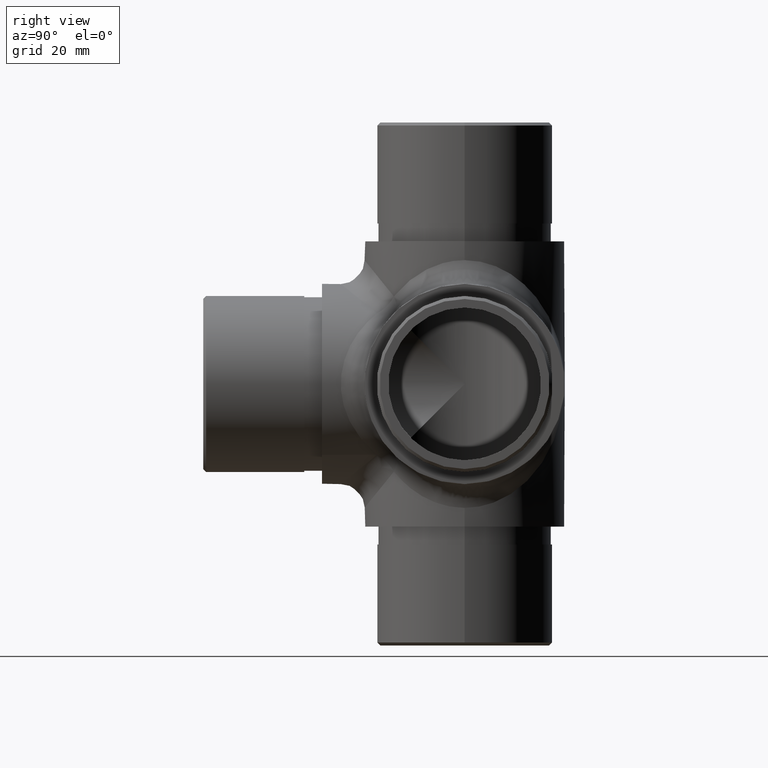
[diagram: clean part render]
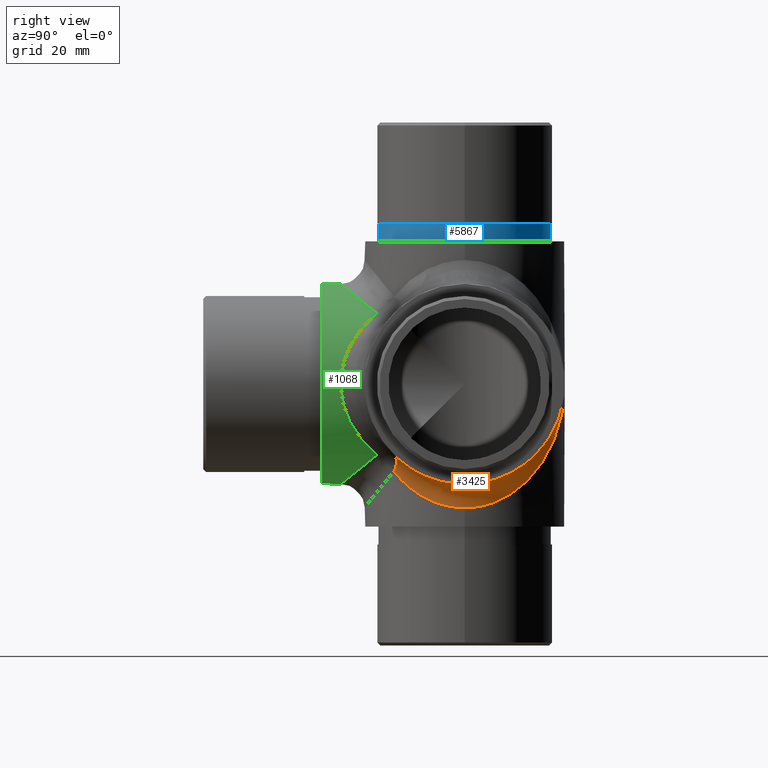
[diagram: same view with three faces highlighted in distinct colors, each labeled with its STEP entity id]
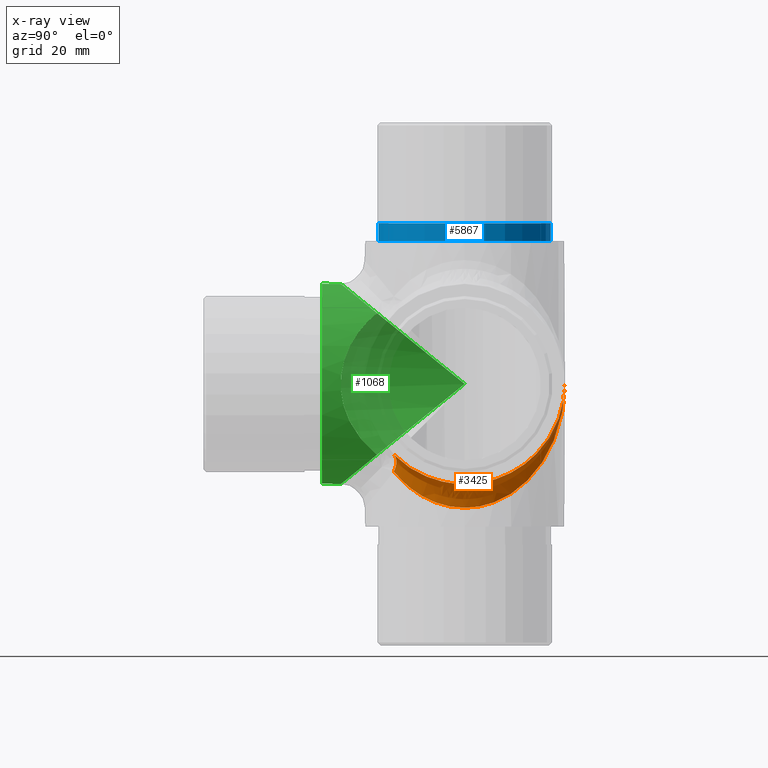
[diagram: x-ray of the same camera — body ghosted, the three highlighted faces saturated]
A machine part, right view with three faces highlighted in distinct colors.
The next image is the same camera in x-ray (body ghosted, the three faces saturated) — at least one of them is partly hidden behind the body in this view.
Their STEP definitions:

[orange] entity #3425 — the highlighted face is a freeform B-spline surface patch.
#187 = ORIENTED_EDGE ( 'NONE', *, *, #4513, .F. ) ;
#270 = EDGE_CURVE ( 'NONE', #10677, #4489, #3300, .T. ) ;
#445 = CARTESIAN_POINT ( 'NONE',  ( 13.43653663587224400, 33.70114904803303100, -13.43653663588843700 ) ) ;
#507 = CARTESIAN_POINT ( 'NONE',  ( 17.63641363597994200, 60.84999999999568800, -21.82309936558942500 ) ) ;
#538 = CARTESIAN_POINT ( 'NONE',  ( 16.36486839152527400, 39.90149855926519300, -20.24970361800024700 ) ) ;
#581 = CARTESIAN_POINT ( 'NONE',  ( 15.88389617735175300, 49.68405434164027000, -19.65455402361004600 ) ) ;
#628 = CARTESIAN_POINT ( 'NONE',  ( 16.68628196688430200, 46.55001467595894800, -16.68628196690896500 ) ) ;
#680 = CARTESIAN_POINT ( 'NONE',  ( 16.54600097572908300, 47.29188141383608700, -20.47383503525089000 ) ) ;
#726 = CARTESIAN_POINT ( 'NONE',  ( 18.87122248208976300, 51.21237732905378700, -15.25084406828093000 ) ) ;
#770 = CARTESIAN_POINT ( 'NONE',  ( 13.43593229435473200, 54.29547838493832800, -13.43593229436983100 ) ) ;
#1440 = CARTESIAN_POINT ( 'NONE',  ( 15.46689860024854500, 32.67012935961199100, -12.49962788559734200 ) ) ;
#1613 = CARTESIAN_POINT ( 'NONE',  ( 19.97646822294041900, 48.89655064889348800, -16.14405225692855300 ) ) ;
#1665 = CARTESIAN_POINT ( 'NONE',  ( 16.76309417136247500, 45.90278812780322000, -16.76309417138600800 ) ) ;
#1708 = CARTESIAN_POINT ( 'NONE',  ( 15.25084406827879800, 51.21237732905417100, -18.87122248211157700 ) ) ;
#1758 = CARTESIAN_POINT ( 'NONE',  ( 17.35747176425961400, 53.37207782090800400, -14.02750116202313900 ) ) ;
#2401 = CARTESIAN_POINT ( 'NONE',  ( 19.28639643330344100, 37.54463374526562100, -15.58636834060469000 ) ) ;
#2539 = CARTESIAN_POINT ( 'NONE',  ( 11.91474926299239300, 32.08525073700142400, -14.74317638773785100 ) ) ;
#2634 = CARTESIAN_POINT ( 'NONE',  ( 16.81787279699630500, 42.73721788667288700, -16.81787279701798700 ) ) ;
#2644 = CARTESIAN_POINT ( 'NONE',  ( 14.74317638772781600, 32.08525073700748500, -11.91474926300278100 ) ) ;
#2671 = CARTESIAN_POINT ( 'NONE',  ( 12.50050521766040700, 55.32890113095297100, -15.46798420108251500 ) ) ;
#2714 = CARTESIAN_POINT ( 'NONE',  ( 14.82249837655076900, 52.17667051820870200, -14.82249837656859600 ) ) ;
#2766 = CARTESIAN_POINT ( 'NONE',  ( 15.46798420106070400, 55.32890113095155000, -12.50050521766581800 ) ) ;
#2817 = CARTESIAN_POINT ( 'NONE',  ( 13.24366149213323500, 57.04048794398283200, -10.70291108599146000 ) ) ;
#3300 =( BOUNDED_CURVE ( )  B_SPLINE_CURVE ( 3, ( #6852, #507, #8838, #12872 ),
 .UNSPECIFIED., .F., .T. ) 
 B_SPLINE_CURVE_WITH_KNOTS ( ( 4, 4 ),
 ( 4.712388980384689700, 7.068583470577216600 ),
 .UNSPECIFIED. ) 
 CURVE ( )  GEOMETRIC_REPRESENTATION_ITEM ( )  RATIONAL_B_SPLINE_CURVE ( ( 1.000000000000000000, 0.5884556215766704200, 0.5884556215766704200, 1.000000000000000000 ) ) 
 REPRESENTATION_ITEM ( '' )  );
#3425 = ADVANCED_FACE ( 'NONE', ( #12616 ), #3899, .F. ) ;
#3457 = CARTESIAN_POINT ( 'NONE',  ( 16.06072260664960200, 38.70662632941130700, -16.06072260667241000 ) ) ;
#3587 = CARTESIAN_POINT ( 'NONE',  ( 15.19650414770706700, 36.54646719331954300, -15.19650414772241800 ) ) ;
#3624 = CARTESIAN_POINT ( 'NONE',  ( 17.35655857882954200, 34.62681769303890900, -14.02676316803583300 ) ) ;
#3670 = CARTESIAN_POINT ( 'NONE',  ( 16.14405225692716800, 48.89655064889479500, -19.97646822296223200 ) ) ;
#3711 = CARTESIAN_POINT ( 'NONE',  ( 7.216921912148167800, 59.35861035221129400, -7.216921912159794900 ) ) ;
#3765 = CARTESIAN_POINT ( 'NONE',  ( 16.85080803507136300, 44.62511639887508600, -16.85080803509133000 ) ) ;
#3805 = CARTESIAN_POINT ( 'NONE',  ( 11.92862569235653500, 55.92956498047277600, -14.76034692496667400 ) ) ;
#3845 = CARTESIAN_POINT ( 'NONE',  ( 14.87795299498906900, 51.95318465839487500, -18.40981127273095200 ) ) ;
#3899 =( BOUNDED_SURFACE ( )  B_SPLINE_SURFACE ( 3, 2, ( 
 ( #9769, #4657, #2539 ),
 ( #1440, #445, #5555 ),
 ( #7657, #8744, #11787 ),
 ( #3624, #9723, #12783 ),
 ( #11834, #3587, #10773 ),
 ( #9583, #5682, #4612 ),
 ( #2401, #3457, #10823 ),
 ( #11879, #5512, #12908 ),
 ( #11698, #6709, #538 ),
 ( #10644, #12739, #6533 ),
 ( #8782, #2634, #13041 ),
 ( #6882, #9810, #9896 ),
 ( #7945, #3765, #9992 ),
 ( #6843, #1665, #6934 ),
 ( #8964, #628, #680 ),
 ( #1613, #12062, #3670 ),
 ( #7893, #8825, #581 ),
 ( #726, #7793, #1708 ),
 ( #6801, #8923, #3845 ),
 ( #1758, #2714, #12111 ),
 ( #7985, #7838, #5821 ),
 ( #2766, #770, #2671 ),
 ( #8876, #9943, #3805 ),
 ( #2817, #11059, #10962 ),
 ( #10867, #4890, #5914 ),
 ( #4792, #13141, #5870 ),
 ( #6754, #3711, #4705 ),
 ( #11965, #12015, #11017 ),
 ( #4749, #12957, #4837 ),
 ( #9856, #10914, #13095 ) ),
 .UNSPECIFIED., .F., .F., .T. ) 
 B_SPLINE_SURFACE_WITH_KNOTS ( ( 4, 2, 2, 2, 2, 2, 2, 2, 2, 2, 2, 2, 2, 2, 4 ),
 ( 3, 3 ),
 ( 5.497787143782025200, 5.645049299419053300, 5.792311455056082400, 5.939573610693111400, 6.086835766330139600, 6.234097921967167700, 6.381360077604196800, 6.528622233241225800, 6.675884388878254000, 6.823146544515282100, 6.970408700152311200, 7.117670855789340200, 7.264933011426368400, 7.559457322700425600, 7.853981633974482800 ),
 ( 0.0000000000000000000, 1.000000000000000000 ),
 .UNSPECIFIED. ) 
 GEOMETRIC_REPRESENTATION_ITEM ( )  RATIONAL_B_SPLINE_SURFACE ( (
 ( 1.000000000000000000, 0.8660254037855842400, 1.000000000000000000),
 ( 1.000000000000000000, 0.8518581657900554700, 1.000000000000000000),
 ( 1.000000000000000000, 0.8373286426287264200, 1.000000000000000000),
 ( 1.000000000000000000, 0.8087926538602341300, 1.000000000000000000),
 ( 1.000000000000000000, 0.7947862272516439400, 1.000000000000000000),
 ( 1.000000000000000000, 0.7686809988168064000, 1.000000000000000000),
 ( 1.000000000000000000, 0.7565887938688089500, 1.000000000000000000),
 ( 1.000000000000000000, 0.7357213436855957200, 1.000000000000000000),
 ( 1.000000000000000000, 0.7269560325927317800, 1.000000000000000000),
 ( 1.000000000000000000, 0.7139188639543188100, 1.000000000000000000),
 ( 1.000000000000000000, 0.7096565420278095900, 1.000000000000000000),
 ( 1.000000000000000000, 0.7062584530685449600, 1.000000000000000000),
 ( 1.000000000000000000, 0.7071257296547213100, 1.000000000000000000),
 ( 1.000000000000000000, 0.7138650231679686300, 1.000000000000000000),
 ( 1.000000000000000000, 0.7197312459740081700, 1.000000000000000000),
 ( 1.000000000000000000, 0.7356308174528779500, 1.000000000000000000),
 ( 1.000000000000000000, 0.7456538433616076700, 1.000000000000000000),
 ( 1.000000000000000000, 0.7685763963388950700, 1.000000000000000000),
 ( 1.000000000000000000, 0.7814668926419364700, 1.000000000000000000),
 ( 1.000000000000000000, 0.8086913583454520300, 1.000000000000000000),
 ( 1.000000000000000000, 0.8230199978462705600, 1.000000000000000000),
 ( 1.000000000000000000, 0.8517664595841157900, 1.000000000000000000),
 ( 1.000000000000000000, 0.8661820557097174000, 1.000000000000000000),
 ( 1.000000000000000000, 0.8939364460783907300, 1.000000000000000000),
 ( 1.000000000000000000, 0.9072747350178003200, 1.000000000000000000),
 ( 1.000000000000000000, 0.9442614554964409200, 1.000000000000000000),
 ( 1.000000000000000000, 0.9647745980456363700, 1.000000000000000000),
 ( 1.000000000000000000, 0.9926394134260547700, 1.000000000000000000),
 ( 1.000000000000000000, 1.000049692711941100, 1.000000000000000000),
 ( 1.000000000000000000, 1.000000000000000000, 1.000000000000000000) ) ) 
 REPRESENTATION_ITEM ( '' )  SURFACE ( )  );
#4489 = VERTEX_POINT ( 'NONE', #9643 ) ;
#4513 = EDGE_CURVE ( 'NONE', #10254, #10677, #11500, .T. ) ;
#4612 = CARTESIAN_POINT ( 'NONE',  ( 15.25027612370903500, 36.78642185303365200, -18.87051971390496500 ) ) ;
#4657 = CARTESIAN_POINT ( 'NONE',  ( 12.85755830456466400, 33.02805977857320100, -12.85755830457864800 ) ) ;
#4705 = CARTESIAN_POINT ( 'NONE',  ( 6.474310463856060200, 59.64424271560802300, -8.011238763880202300 ) ) ;
#4749 = CARTESIAN_POINT ( 'NONE',  ( 2.047061189609068200, 60.84999999998451900, -1.654339618478752700 ) ) ;
#4760 = CARTESIAN_POINT ( 'NONE',  ( 30.17443793565071200, 44.55607841481520400, -24.38557694080259400 ) ) ;
#4792 = CARTESIAN_POINT ( 'NONE',  ( 9.881667655209600600, 58.92931218146535600, -7.985904076294065000 ) ) ;
#4837 = CARTESIAN_POINT ( 'NONE',  ( 1.654339618479534300, 60.84999999999568800, -2.047061189632046300 ) ) ;
#4890 = CARTESIAN_POINT ( 'NONE',  ( 10.99872592893003700, 56.85083583709571500, -10.99872592895275500 ) ) ;
#5512 = CARTESIAN_POINT ( 'NONE',  ( 16.44239679482694100, 40.10545594430441700, -16.44239679484225300 ) ) ;
#5555 = CARTESIAN_POINT ( 'NONE',  ( 12.49962788559850700, 32.67012935960723000, -15.46689860027508200 ) ) ;
#5682 = CARTESIAN_POINT ( 'NONE',  ( 15.81736895203990300, 37.99146490380090300, -15.81736895205918400 ) ) ;
#5690 = CARTESIAN_POINT ( 'NONE',  ( 14.74317638772781600, 32.08525073700748500, -11.91474926300278100 ) ) ;
#5788 = ORIENTED_EDGE ( 'NONE', *, *, #7166, .T. ) ;
#5821 = CARTESIAN_POINT ( 'NONE',  ( 13.54994706066385700, 54.05015254535320000, -16.76655170414466400 ) ) ;
#5870 = CARTESIAN_POINT ( 'NONE',  ( 7.985904076285681400, 58.92931218146024700, -9.881667655229103200 ) ) ;
#5914 = CARTESIAN_POINT ( 'NONE',  ( 10.04908560142765900, 57.55073836021018300, -12.43462521007428900 ) ) ;
#6122 = ORIENTED_EDGE ( 'NONE', *, *, #270, .F. ) ;
#6323 = AXIS2_PLACEMENT_3D ( 'NONE', #7528, #10738, #8699 ) ;
#6533 = CARTESIAN_POINT ( 'NONE',  ( 16.68759555806333200, 41.52395758878137900, -20.64904257481376200 ) ) ;
#6615 = CARTESIAN_POINT ( 'NONE',  ( 0.0000000000000000000, 60.84999999999568800, 0.0000000000000000000 ) ) ;
#6709 = CARTESIAN_POINT ( 'NONE',  ( 16.57654214454479600, 40.78180193427887400, -16.57654214456192300 ) ) ;
#6754 = CARTESIAN_POINT ( 'NONE',  ( 8.011238763858390400, 59.64424271559785500, -6.474310463853477400 ) ) ;
#6801 = CARTESIAN_POINT ( 'NONE',  ( 18.40981127270914200, 51.95318465839232400, -14.87795299498759300 ) ) ;
#6843 = CARTESIAN_POINT ( 'NONE',  ( 20.64928375427806600, 46.47472843443518500, -16.68779046810545500 ) ) ;
#6852 = CARTESIAN_POINT ( 'NONE',  ( 0.0000000000000000000, 60.84999999999568800, 0.0000000000000000000 ) ) ;
#6882 = CARTESIAN_POINT ( 'NONE',  ( 20.87510465171854800, 43.99933582288642200, -16.87028841159666800 ) ) ;
#6934 = CARTESIAN_POINT ( 'NONE',  ( 16.68779046810505700, 46.47472843443715400, -20.64928375430165600 ) ) ;
#7166 = EDGE_CURVE ( 'NONE', #10254, #4489, #8373, .T. ) ;
#7229 = EDGE_LOOP ( 'NONE', ( #5788, #6122, #187 ) ) ;
#7528 = CARTESIAN_POINT ( 'NONE',  ( 14.74317638771253200, 29.25682361225184300, -14.74317638773951300 ) ) ;
#7657 = CARTESIAN_POINT ( 'NONE',  ( 16.13719548386713100, 33.29811574555355900, -13.04133064285900900 ) ) ;
#7793 = CARTESIAN_POINT ( 'NONE',  ( 15.81431149140683900, 50.00791797635671500, -15.81431149142637500 ) ) ;
#7838 = CARTESIAN_POINT ( 'NONE',  ( 14.40577954045467400, 52.89720291917531400, -14.40577954047187600 ) ) ;
#7893 = CARTESIAN_POINT ( 'NONE',  ( 19.65455402358823300, 49.68405434163781800, -15.88389617735080300 ) ) ;
#7945 = CARTESIAN_POINT ( 'NONE',  ( 20.84991934790920700, 44.82844919465845400, -16.84993482074796100 ) ) ;
#7985 = CARTESIAN_POINT ( 'NONE',  ( 16.76655170412285000, 54.05015254535265300, -13.54994706066007700 ) ) ;
#8373 = CIRCLE ( 'NONE', #6323, 3.999999999999999100 ) ;
#8699 = DIRECTION ( 'NONE',  ( 0.7071067811830358300, 0.0000000000000000000, 0.7071067811900592100 ) ) ;
#8744 = CARTESIAN_POINT ( 'NONE',  ( 13.94191703265154600, 34.39799646659750500, -13.94191703266909600 ) ) ;
#8782 = CARTESIAN_POINT ( 'NONE',  ( 20.77466587199336000, 42.34708355226673100, -16.78911846251743600 ) ) ;
#8825 = CARTESIAN_POINT ( 'NONE',  ( 16.27147724458808800, 48.58768780416858800, -16.27147724460762700 ) ) ;
#8838 = CARTESIAN_POINT ( 'NONE',  ( 24.38557694080574100, 44.55607841481023000, -30.17443793565577400 ) ) ;
#8840 = CARTESIAN_POINT ( 'NONE',  ( 21.82309936558339200, 60.84999999999568100, -17.63641363597575000 ) ) ;
#8876 = CARTESIAN_POINT ( 'NONE',  ( 14.76034692494486000, 55.92956498046913100, -11.92862569235473700 ) ) ;
#8923 = CARTESIAN_POINT ( 'NONE',  ( 15.52952239489219900, 50.73057884407295100, -15.52952239491002700 ) ) ;
#8964 = CARTESIAN_POINT ( 'NONE',  ( 20.47383503522907600, 47.29188141383428200, -16.54600097572848200 ) ) ;
#9583 = CARTESIAN_POINT ( 'NONE',  ( 18.87051971388315200, 36.78642185303416300, -15.25027612370598400 ) ) ;
#9643 = CARTESIAN_POINT ( 'NONE',  ( 11.91474926299332000, 32.08525073699802700, -14.74317638773951300 ) ) ;
#9723 = CARTESIAN_POINT ( 'NONE',  ( 14.82445315691971800, 35.82083456138834500, -14.82445315693313100 ) ) ;
#9769 = CARTESIAN_POINT ( 'NONE',  ( 14.74317638771603900, 32.08525073700059200, -11.91474926299156500 ) ) ;
#9810 = CARTESIAN_POINT ( 'NONE',  ( 16.86082885428247400, 44.00289475777827900, -16.86082885430416000 ) ) ;
#9856 = CARTESIAN_POINT ( 'NONE',  ( -2.180914780865528100E-011, 60.84999999999568800, -1.031764928281696000E-015 ) ) ;
#9896 = CARTESIAN_POINT ( 'NONE',  ( 16.87028841159735700, 43.99933582288804200, -20.87510465174036200 ) ) ;
#9943 = CARTESIAN_POINT ( 'NONE',  ( 12.88733898681454600, 54.97414848844560000, -12.88733898682915900 ) ) ;
#9992 = CARTESIAN_POINT ( 'NONE',  ( 16.84993482074804300, 44.82844919465976100, -20.84991934792923400 ) ) ;
#10254 = VERTEX_POINT ( 'NONE', #5690 ) ;
#10644 = CARTESIAN_POINT ( 'NONE',  ( 20.64904257479014000, 41.52395758877692300, -16.68759555806099500 ) ) ;
#10677 = VERTEX_POINT ( 'NONE', #6615 ) ;
#10738 = DIRECTION ( 'NONE',  ( -0.5773502691934486700, -0.5773502691877143700, 0.5773502691877143700 ) ) ;
#10773 = CARTESIAN_POINT ( 'NONE',  ( 14.47047048482968300, 35.32750811592001100, -17.90559700941955200 ) ) ;
#10823 = CARTESIAN_POINT ( 'NONE',  ( 15.58636834060152600, 37.54463374526331900, -19.28639643332712300 ) ) ;
#10867 = CARTESIAN_POINT ( 'NONE',  ( 12.43462521005131900, 57.55073836020687100, -10.04908560142462000 ) ) ;
#10914 = CARTESIAN_POINT ( 'NONE',  ( -1.090405802186349900E-011, 60.84999999999568800, -1.154229608196406100E-015 ) ) ;
#10962 = CARTESIAN_POINT ( 'NONE',  ( 10.70291108598801200, 57.04048794398068600, -13.24366149215504900 ) ) ;
#11017 = CARTESIAN_POINT ( 'NONE',  ( 3.308283159619231900, 60.60464659855880100, -4.093632277631337900 ) ) ;
#11059 = CARTESIAN_POINT ( 'NONE',  ( 11.66757407721547700, 56.24997251432262900, -11.66757407723008700 ) ) ;
#11500 =( BOUNDED_CURVE ( )  B_SPLINE_CURVE ( 3, ( #2644, #4760, #8840, #13011 ),
 .UNSPECIFIED., .F., .F. ) 
 B_SPLINE_CURVE_WITH_KNOTS ( ( 4, 4 ),
 ( 5.497787143782281800, 7.853981633974482800 ),
 .UNSPECIFIED. ) 
 CURVE ( )  GEOMETRIC_REPRESENTATION_ITEM ( )  RATIONAL_B_SPLINE_CURVE ( ( 1.000000000000000000, 0.5884556215767707800, 0.5884556215767707800, 1.000000000000000000 ) ) 
 REPRESENTATION_ITEM ( '' )  );
#11698 = CARTESIAN_POINT ( 'NONE',  ( 20.24970361798024100, 39.90149855926645000, -16.36486839152698600 ) ) ;
#11787 = CARTESIAN_POINT ( 'NONE',  ( 13.04133064285580600, 33.29811574555528600, -16.13719548389100600 ) ) ;
#11834 = CARTESIAN_POINT ( 'NONE',  ( 17.90559700939773800, 35.32750811591692800, -14.47047048483136500 ) ) ;
#11879 = CARTESIAN_POINT ( 'NONE',  ( 19.97599108478363000, 39.10217819540357500, -16.14366665606155800 ) ) ;
#11965 = CARTESIAN_POINT ( 'NONE',  ( 4.093632277609526900, 60.60464659856869900, -3.308283159622736200 ) ) ;
#12015 = CARTESIAN_POINT ( 'NONE',  ( 3.725439844393873200, 60.53677265078695800, -3.725439844405501700 ) ) ;
#12062 = CARTESIAN_POINT ( 'NONE',  ( 16.43909050839352300, 47.89659548805238400, -16.43909050841088200 ) ) ;
#12111 = CARTESIAN_POINT ( 'NONE',  ( 14.02750116202019900, 53.37207782090790400, -17.35747176428142100 ) ) ;
#12616 = FACE_OUTER_BOUND ( 'NONE', #7229, .T. ) ;
#12739 = CARTESIAN_POINT ( 'NONE',  ( 16.76531189981810500, 42.10187387161128900, -16.76531189984247300 ) ) ;
#12783 = CARTESIAN_POINT ( 'NONE',  ( 14.02676316804061300, 34.62681769303932100, -17.35655857884928800 ) ) ;
#12872 = CARTESIAN_POINT ( 'NONE',  ( 11.91474926299332000, 32.08525073699802700, -14.74317638773951300 ) ) ;
#12908 = CARTESIAN_POINT ( 'NONE',  ( 16.14366665606576800, 39.10217819540881100, -19.97599108480356400 ) ) ;
#12957 = CARTESIAN_POINT ( 'NONE',  ( 1.850617136447301400, 60.84999999999568800, -1.850617136458287300 ) ) ;
#13011 = CARTESIAN_POINT ( 'NONE',  ( 0.0000000000000000000, 60.84999999999568800, 0.0000000000000000000 ) ) ;
#13041 = CARTESIAN_POINT ( 'NONE',  ( 16.78911846251690000, 42.34708355226842300, -20.77466587201517400 ) ) ;
#13095 = CARTESIAN_POINT ( 'NONE',  ( 1.031764928281594200E-015, 60.84999999999568800, -1.276694288111115800E-015 ) ) ;
#13141 = CARTESIAN_POINT ( 'NONE',  ( 8.868828295484668400, 58.46498603254324400, -8.868828295480035700 ) ) ;

[blue] entity #5867 — the highlighted cylindrical surface (bore or boss wall) has radius 14.6 mm, axis along (-0, -0, -1).
#210 = ORIENTED_EDGE ( 'NONE', *, *, #12214, .F. ) ;
#214 = DIRECTION ( 'NONE',  ( 1.000000000000000000, 0.0000000000000000000, 0.0000000000000000000 ) ) ;
#249 = AXIS2_PLACEMENT_3D ( 'NONE', #6908, #6025, #8056 ) ;
#1286 = CARTESIAN_POINT ( 'NONE',  ( 0.0000000000000000000, 44.00000000000000000, 24.00000000000000000 ) ) ;
#1881 = AXIS2_PLACEMENT_3D ( 'NONE', #11046, #7928, #8014 ) ;
#2756 = FACE_OUTER_BOUND ( 'NONE', #11559, .T. ) ;
#4660 = EDGE_LOOP ( 'NONE', ( #5719 ) ) ;
#4709 = CARTESIAN_POINT ( 'NONE',  ( 14.60000000000000000, 44.00000000000000000, 24.00000000000000000 ) ) ;
#4775 = VERTEX_POINT ( 'NONE', #4709 ) ;
#5302 = CIRCLE ( 'NONE', #12737, 14.60000000000000000 ) ;
#5719 = ORIENTED_EDGE ( 'NONE', *, *, #9066, .T. ) ;
#5867 = ADVANCED_FACE ( 'NONE', ( #2756, #11166 ), #5989, .T. ) ;
#5989 = CYLINDRICAL_SURFACE ( 'NONE', #249, 14.60000000000000000 ) ;
#6025 = DIRECTION ( 'NONE',  ( -0.0000000000000000000, -0.0000000000000000000, -1.000000000000000000 ) ) ;
#6908 = CARTESIAN_POINT ( 'NONE',  ( 0.0000000000000000000, 44.00000000000000000, 27.00000000000000000 ) ) ;
#7928 = DIRECTION ( 'NONE',  ( 0.0000000000000000000, 0.0000000000000000000, 1.000000000000000000 ) ) ;
#8014 = DIRECTION ( 'NONE',  ( 1.000000000000000000, 0.0000000000000000000, 0.0000000000000000000 ) ) ;
#8056 = DIRECTION ( 'NONE',  ( -1.000000000000000000, 0.0000000000000000000, 0.0000000000000000000 ) ) ;
#8969 = CARTESIAN_POINT ( 'NONE',  ( 14.60000000000000000, 44.00000000000000000, 27.00000000000000000 ) ) ;
#9066 = EDGE_CURVE ( 'NONE', #4775, #4775, #5302, .T. ) ;
#10419 = CIRCLE ( 'NONE', #1881, 14.60000000000000000 ) ;
#11046 = CARTESIAN_POINT ( 'NONE',  ( 0.0000000000000000000, 44.00000000000000000, 27.00000000000000000 ) ) ;
#11166 = FACE_OUTER_BOUND ( 'NONE', #4660, .T. ) ;
#11559 = EDGE_LOOP ( 'NONE', ( #210 ) ) ;
#11561 = VERTEX_POINT ( 'NONE', #8969 ) ;
#12214 = EDGE_CURVE ( 'NONE', #11561, #11561, #10419, .T. ) ;
#12587 = DIRECTION ( 'NONE',  ( 0.0000000000000000000, 0.0000000000000000000, 1.000000000000000000 ) ) ;
#12737 = AXIS2_PLACEMENT_3D ( 'NONE', #1286, #12587, #214 ) ;

[green] entity #1068 — the highlighted cylindrical surface (bore or boss wall) has radius 16.85 mm, axis along (-0, -1, -0).
#273 = CIRCLE ( 'NONE', #11868, 16.85000000000000100 ) ;
#421 = ORIENTED_EDGE ( 'NONE', *, *, #9469, .T. ) ;
#792 = CARTESIAN_POINT ( 'NONE',  ( 18.89424778898084500, 20.62047083676831600, 4.935250737007121000 ) ) ;
#1068 = ADVANCED_FACE ( 'NONE', ( #3936, #10031 ), #3282, .T. ) ;
#1256 = CARTESIAN_POINT ( 'NONE',  ( 11.91474926299158100, 29.25682361225024800, -11.91474926299507000 ) ) ;
#1902 = CARTESIAN_POINT ( 'NONE',  ( -16.84999999999999400, 22.17690063440590700, 17.63641363597740900 ) ) ;
#1962 = VERTEX_POINT ( 'NONE', #6215 ) ;
#2286 = AXIS2_PLACEMENT_3D ( 'NONE', #13205, #12081, #9124 ) ;
#2923 = CARTESIAN_POINT ( 'NONE',  ( 18.89424778898058600, 20.62047083676863600, -4.935250737008114900 ) ) ;
#3282 = CYLINDRICAL_SURFACE ( 'NONE', #2286, 16.85000000000000100 ) ;
#3455 = CARTESIAN_POINT ( 'NONE',  ( -16.85000000000000100, 43.99999999999136000, 0.0000000000000000000 ) ) ;
#3936 = FACE_OUTER_BOUND ( 'NONE', #10602, .T. ) ;
#4388 = CARTESIAN_POINT ( 'NONE',  ( -16.85000000000000100, 22.17690063440801400, -17.63641363597571000 ) ) ;
#4858 = CARTESIAN_POINT ( 'NONE',  ( 11.91474926299158100, 29.25682361225024800, -11.91474926299507000 ) ) ;
#5094 = CARTESIAN_POINT ( 'NONE',  ( -16.85000000000000100, 43.99999999999136000, 0.0000000000000000000 ) ) ;
#5113 = EDGE_CURVE ( 'NONE', #1962, #11778, #12807, .T. ) ;
#5773 = CARTESIAN_POINT ( 'NONE',  ( 11.91474926299315000, 29.25682361225219800, 11.91474926299349800 ) ) ;
#6215 = CARTESIAN_POINT ( 'NONE',  ( -16.85000000000000100, 43.99999999999136000, 0.0000000000000000000 ) ) ;
#6280 = VERTEX_POINT ( 'NONE', #5773 ) ;
#6385 = EDGE_CURVE ( 'NONE', #6280, #1962, #7158, .T. ) ;
#6867 = ORIENTED_EDGE ( 'NONE', *, *, #5113, .T. ) ;
#6920 = EDGE_CURVE ( 'NONE', #11778, #6280, #10559, .T. ) ;
#7158 =( BOUNDED_CURVE ( )  B_SPLINE_CURVE ( 3, ( #8033, #10087, #1902, #5094 ),
 .UNSPECIFIED., .F., .T. ) 
 B_SPLINE_CURVE_WITH_KNOTS ( ( 4, 4 ),
 ( 2.356194490192359900, 4.712388980384689700 ),
 .UNSPECIFIED. ) 
 CURVE ( )  GEOMETRIC_REPRESENTATION_ITEM ( )  RATIONAL_B_SPLINE_CURVE ( ( 1.000000000000000000, 0.5884556215767311500, 0.5884556215767311500, 1.000000000000000000 ) ) 
 REPRESENTATION_ITEM ( '' )  );
#7896 = ORIENTED_EDGE ( 'NONE', *, *, #6385, .T. ) ;
#8033 = CARTESIAN_POINT ( 'NONE',  ( 11.91474926299315000, 29.25682361225219800, 11.91474926299349800 ) ) ;
#8147 = CARTESIAN_POINT ( 'NONE',  ( 0.0000000000000000000, 20.00000000000000000, 0.0000000000000000000 ) ) ;
#9124 = DIRECTION ( 'NONE',  ( 0.0000000000000000000, 0.0000000000000000000, -1.000000000000000000 ) ) ;
#9454 = DIRECTION ( 'NONE',  ( 0.0000000000000000000, 1.000000000000000000, 0.0000000000000000000 ) ) ;
#9469 = EDGE_CURVE ( 'NONE', #12044, #12044, #273, .T. ) ;
#9581 = CARTESIAN_POINT ( 'NONE',  ( -0.5560784148195673200, 13.82556206434067800, -24.38557694080256500 ) ) ;
#9960 = CARTESIAN_POINT ( 'NONE',  ( 11.91474926299315000, 29.25682361225219800, 11.91474926299349800 ) ) ;
#10031 = FACE_OUTER_BOUND ( 'NONE', #13018, .T. ) ;
#10087 = CARTESIAN_POINT ( 'NONE',  ( -0.5560784148175586000, 13.82556206433911000, 24.38557694080383700 ) ) ;
#10522 = DIRECTION ( 'NONE',  ( 0.0000000000000000000, 0.0000000000000000000, 1.000000000000000000 ) ) ;
#10559 =( BOUNDED_CURVE ( )  B_SPLINE_CURVE ( 3, ( #4858, #2923, #792, #9960 ),
 .UNSPECIFIED., .F., .F. ) 
 B_SPLINE_CURVE_WITH_KNOTS ( ( 4, 4 ),
 ( 5.497787143781991400, 7.068583470577128700 ),
 .UNSPECIFIED. ) 
 CURVE ( )  GEOMETRIC_REPRESENTATION_ITEM ( )  RATIONAL_B_SPLINE_CURVE ( ( 1.000000000000000000, 0.8047378541243082100, 0.8047378541243082100, 1.000000000000000000 ) ) 
 REPRESENTATION_ITEM ( '' )  );
#10602 = EDGE_LOOP ( 'NONE', ( #421 ) ) ;
#11778 = VERTEX_POINT ( 'NONE', #12113 ) ;
#11868 = AXIS2_PLACEMENT_3D ( 'NONE', #8147, #9454, #10522 ) ;
#11923 = CARTESIAN_POINT ( 'NONE',  ( 0.0000000000000000000, 20.00000000000000000, 16.85000000000000100 ) ) ;
#12044 = VERTEX_POINT ( 'NONE', #11923 ) ;
#12081 = DIRECTION ( 'NONE',  ( -0.0000000000000000000, -1.000000000000000000, -0.0000000000000000000 ) ) ;
#12113 = CARTESIAN_POINT ( 'NONE',  ( 11.91474926299158100, 29.25682361225024800, -11.91474926299507000 ) ) ;
#12309 = ORIENTED_EDGE ( 'NONE', *, *, #6920, .T. ) ;
#12807 =( BOUNDED_CURVE ( )  B_SPLINE_CURVE ( 3, ( #3455, #4388, #9581, #1256 ),
 .UNSPECIFIED., .F., .T. ) 
 B_SPLINE_CURVE_WITH_KNOTS ( ( 4, 4 ),
 ( 4.712388980384689700, 7.068583470576888000 ),
 .UNSPECIFIED. ) 
 CURVE ( )  GEOMETRIC_REPRESENTATION_ITEM ( )  RATIONAL_B_SPLINE_CURVE ( ( 1.000000000000000000, 0.5884556215767716700, 0.5884556215767716700, 1.000000000000000000 ) ) 
 REPRESENTATION_ITEM ( '' )  );
#13018 = EDGE_LOOP ( 'NONE', ( #6867, #12309, #7896 ) ) ;
#13205 = CARTESIAN_POINT ( 'NONE',  ( 0.0000000000000000000, 500000.0000000000600, 0.0000000000000000000 ) ) ;